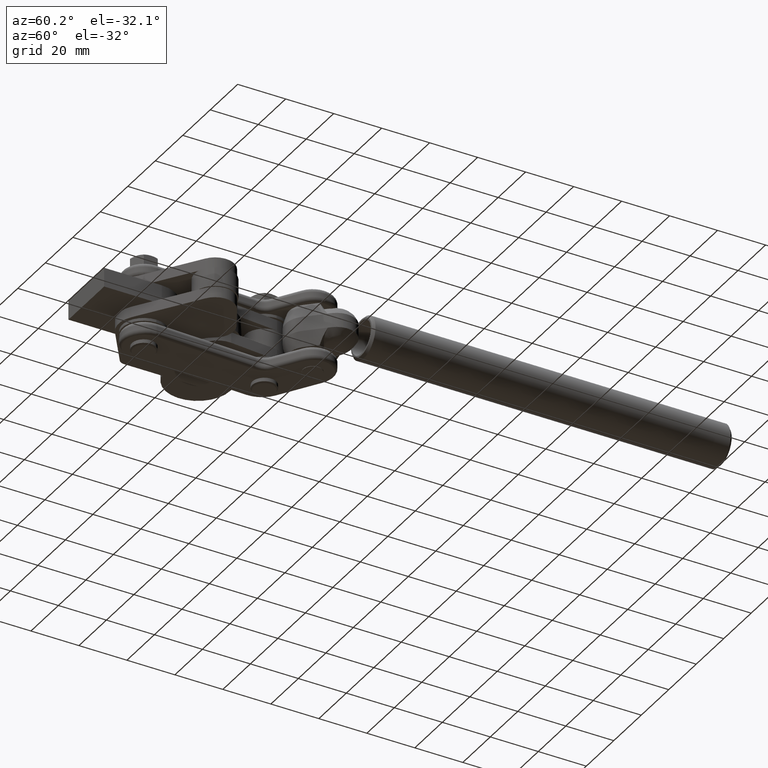
[diagram: clean part render]
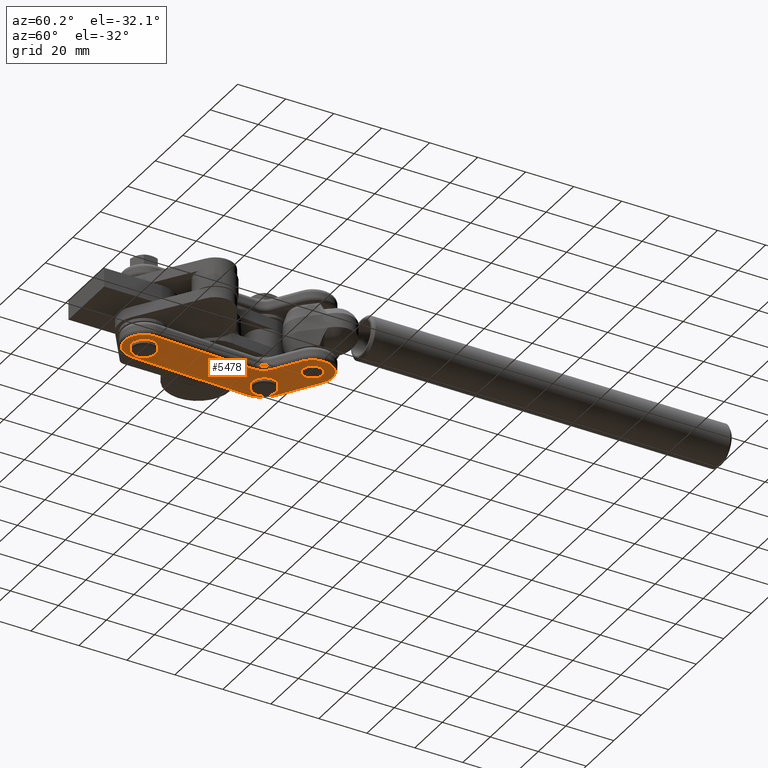
[diagram: same view with one face highlighted and labeled with its STEP entity id]
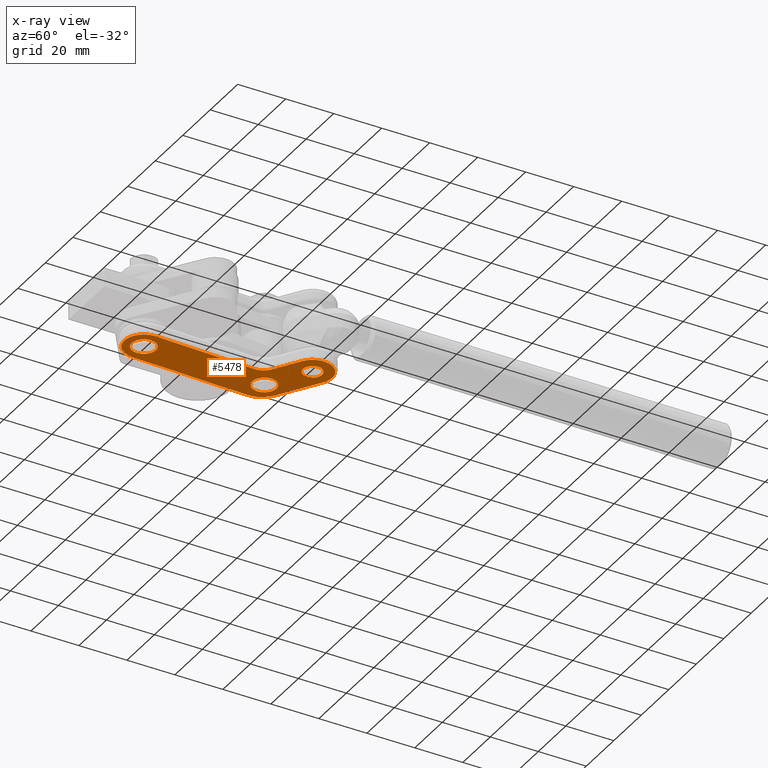
[diagram: x-ray of the same camera — body ghosted, the highlighted face saturated]
A machine part, auxiliary view. The second image highlights one B-rep face of the part: STEP entity #5478.
The next image is the same camera in x-ray: the body ghosted, the highlighted face saturated — about 0% of this face is hidden behind the body in this view.
In plain terms, the highlighted planar face has unit normal (0, -0, 1).
Its self-contained STEP definition (entity closure, byte-faithful):
#41 = DIRECTION ( 'NONE',  ( 0.02041893309478636000, -0.9997915118519814500, -1.179076545733166000E-016 ) ) ;
#205 = VERTEX_POINT ( 'NONE', #10947 ) ;
#322 = EDGE_CURVE ( 'NONE', #7560, #7708, #12642, .T. ) ;
#393 = CARTESIAN_POINT ( 'NONE',  ( 4.267419750903407400E-016, 24.00000000000000400, -15.10000000000000900 ) ) ;
#622 = AXIS2_PLACEMENT_3D ( 'NONE', #8979, #2618, #10031 ) ;
#659 = CARTESIAN_POINT ( 'NONE',  ( 15.37457460903995200, 85.51675792523471400, -15.09999999999999800 ) ) ;
#694 = CARTESIAN_POINT ( 'NONE',  ( -8.194119609790277500, 23.68951035371996000, -15.10000000000000300 ) ) ;
#785 = FACE_OUTER_BOUND ( 'NONE', #8835, .T. ) ;
#881 = CARTESIAN_POINT ( 'NONE',  ( 10.88814944763291200, 92.38057532308948800, -15.09999999999999600 ) ) ;
#914 = VERTEX_POINT ( 'NONE', #9258 ) ;
#1119 = EDGE_LOOP ( 'NONE', ( #2631, #5591 ) ) ;
#1169 = DIRECTION ( 'NONE',  ( 0.8370509021774107400, 0.5471250196837856800, -2.907818477255799900E-018 ) ) ;
#1259 = ORIENTED_EDGE ( 'NONE', *, *, #11682, .T. ) ;
#1305 = EDGE_CURVE ( 'NONE', #13028, #11928, #9318, .T. ) ;
#1323 = ORIENTED_EDGE ( 'NONE', *, *, #3184, .T. ) ;
#1417 = CARTESIAN_POINT ( 'NONE',  ( 8.194119609790650600, 24.31048964628004700, -15.10000000000000300 ) ) ;
#1484 = DIRECTION ( 'NONE',  ( 0.2583436741269925500, -0.9660530762015957500, 0.0000000000000000000 ) ) ;
#1540 = ORIENTED_EDGE ( 'NONE', *, *, #1305, .T. ) ;
#1625 = CIRCLE ( 'NONE', #11343, 10.70000000000014900 ) ;
#1729 = DIRECTION ( 'NONE',  ( 0.02041893309478991200, -0.9997915118519813400, -2.115516434118059400E-016 ) ) ;
#1737 = EDGE_CURVE ( 'NONE', #4436, #914, #12243, .T. ) ;
#1767 = CIRCLE ( 'NONE', #7724, 8.199999999999979700 ) ;
#1828 = ORIENTED_EDGE ( 'NONE', *, *, #4341, .T. ) ;
#1841 = DIRECTION ( 'NONE',  ( 0.03786459100976170800, -0.9992828792427414000, 9.872495213524562900E-019 ) ) ;
#1939 = EDGE_LOOP ( 'NONE', ( #13435, #4606 ) ) ;
#2286 = CARTESIAN_POINT ( 'NONE',  ( -1.037281801216083600, 74.78940880208064400, -15.10000000000000700 ) ) ;
#2350 = AXIS2_PLACEMENT_3D ( 'NONE', #8782, #2433, #9823 ) ;
#2433 = DIRECTION ( 'NONE',  ( 2.759769655850127200E-018, 1.092530546985554200E-018, 1.000000000000000000 ) ) ;
#2495 = CARTESIAN_POINT ( 'NONE',  ( -8.194119609790279300, 23.68951035371996000, -15.10000000000000300 ) ) ;
#2522 = DIRECTION ( 'NONE',  ( 0.6804252120048569500, -0.7328175290399004900, 0.0000000000000000000 ) ) ;
#2618 = DIRECTION ( 'NONE',  ( -5.188471184501662800E-018, 1.178262769095968900E-016, -1.000000000000000000 ) ) ;
#2631 = ORIENTED_EDGE ( 'NONE', *, *, #4298, .T. ) ;
#2920 = CARTESIAN_POINT ( 'NONE',  ( 1.862950070566014600E-013, 24.00000000000000400, -15.10000000000000300 ) ) ;
#3089 = EDGE_CURVE ( 'NONE', #9402, #11503, #13527, .T. ) ;
#3184 = EDGE_CURVE ( 'NONE', #11073, #13607, #9083, .T. ) ;
#3256 = VERTEX_POINT ( 'NONE', #881 ) ;
#3404 = VECTOR ( 'NONE', #1841, 1000.000000000000100 ) ;
#3463 = CARTESIAN_POINT ( 'NONE',  ( -5.205530951527545200, 81.86119689309180100, -15.09999999999999800 ) ) ;
#3519 = DIRECTION ( 'NONE',  ( -0.03786459100976167400, 0.9992828792427414000, -9.872495213524562900E-019 ) ) ;
#3644 = CIRCLE ( 'NONE', #10055, 6.300000000000143700 ) ;
#3729 = VECTOR ( 'NONE', #1169, 1000.000000000000200 ) ;
#3744 = AXIS2_PLACEMENT_3D ( 'NONE', #393, #7800, #1484 ) ;
#3881 = CARTESIAN_POINT ( 'NONE',  ( 12.89717436820860500, 66.57472272249512500, -15.10000000000000000 ) ) ;
#3887 = FACE_BOUND ( 'NONE', #1119, .T. ) ;
#3942 = CIRCLE ( 'NONE', #2350, 4.000000000000000900 ) ;
#3977 = DIRECTION ( 'NONE',  ( 0.02041893309490624300, -0.9997915118519790100, -2.115516434118062600E-016 ) ) ;
#3992 = EDGE_CURVE ( 'NONE', #6381, #205, #11900, .T. ) ;
#4072 = LINE ( 'NONE', #4268, #3729 ) ;
#4076 = ORIENTED_EDGE ( 'NONE', *, *, #9300, .T. ) ;
#4161 = PLANE ( 'NONE',  #11402 ) ;
#4268 = CARTESIAN_POINT ( 'NONE',  ( 10.88814944763291100, 92.38057532308948800, -15.09999999999999800 ) ) ;
#4298 = EDGE_CURVE ( 'NONE', #914, #4436, #3942, .T. ) ;
#4341 = EDGE_CURVE ( 'NONE', #11928, #13028, #6444, .T. ) ;
#4358 = DIRECTION ( 'NONE',  ( -5.188471184501662800E-018, 1.178262769095968900E-016, -1.000000000000000000 ) ) ;
#4436 = VERTEX_POINT ( 'NONE', #10068 ) ;
#4461 = ORIENTED_EDGE ( 'NONE', *, *, #6623, .T. ) ;
#4476 = CARTESIAN_POINT ( 'NONE',  ( -1.291718370634961800, 28.83026538100798300, -15.10000000000000900 ) ) ;
#4494 = CARTESIAN_POINT ( 'NONE',  ( 8.198290397186415400, 24.16743525137724900, -15.10000000000000300 ) ) ;
#4606 = ORIENTED_EDGE ( 'NONE', *, *, #12091, .T. ) ;
#4804 = CARTESIAN_POINT ( 'NONE',  ( 19.86099977044698400, 78.65294052737996800, -15.09999999999999800 ) ) ;
#4914 = EDGE_CURVE ( 'NONE', #10482, #3256, #4072, .T. ) ;
#4936 = DIRECTION ( 'NONE',  ( -0.02041893309478560700, 0.9997915118519814500, 0.0000000000000000000 ) ) ;
#5343 = AXIS2_PLACEMENT_3D ( 'NONE', #7045, #5380, #10573 ) ;
#5380 = DIRECTION ( 'NONE',  ( 0.0000000000000000000, 0.0000000000000000000, 1.000000000000000000 ) ) ;
#5478 = ADVANCED_FACE ( 'NONE', ( #3887, #9230, #785, #9540 ), #4161, .F. ) ;
#5591 = ORIENTED_EDGE ( 'NONE', *, *, #1737, .T. ) ;
#5599 = CIRCLE ( 'NONE', #622, 8.199999999999979700 ) ;
#5756 = AXIS2_PLACEMENT_3D ( 'NONE', #659, #8075, #1729 ) ;
#5837 = DIRECTION ( 'NONE',  ( -5.188471184501662800E-018, 1.178262769095968900E-016, -1.000000000000000000 ) ) ;
#5956 = CARTESIAN_POINT ( 'NONE',  ( -1.037281801216083600, 74.78940880208064400, -15.10000000000000700 ) ) ;
#6023 = CARTESIAN_POINT ( 'NONE',  ( 8.194119609790650600, 24.31048964628004700, -15.10000000000000300 ) ) ;
#6097 = CARTESIAN_POINT ( 'NONE',  ( 2.364844258808200400, 71.12532115688114200, -15.10000000000000700 ) ) ;
#6183 = ORIENTED_EDGE ( 'NONE', *, *, #4914, .T. ) ;
#6348 = DIRECTION ( 'NONE',  ( 5.188471184501661300E-018, -1.178262769095968100E-016, 1.000000000000000000 ) ) ;
#6381 = VERTEX_POINT ( 'NONE', #694 ) ;
#6421 = AXIS2_PLACEMENT_3D ( 'NONE', #2286, #9113, #2522 ) ;
#6444 = CIRCLE ( 'NONE', #3744, 5.000000000000000000 ) ;
#6533 = ORIENTED_EDGE ( 'NONE', *, *, #11184, .T. ) ;
#6623 = EDGE_CURVE ( 'NONE', #10597, #9402, #12109, .T. ) ;
#6955 = DIRECTION ( 'NONE',  ( -0.8370509021774102900, -0.5471250196837861300, 2.907818477255799100E-018 ) ) ;
#6990 = EDGE_LOOP ( 'NONE', ( #1828, #1540 ) ) ;
#7016 = DIRECTION ( 'NONE',  ( 0.6804252120048569500, -0.7328175290399004900, 0.0000000000000000000 ) ) ;
#7045 = CARTESIAN_POINT ( 'NONE',  ( 4.267419750903407400E-016, 24.00000000000000400, -15.10000000000000900 ) ) ;
#7300 = CARTESIAN_POINT ( 'NONE',  ( 1.291718370634963100, 19.16973461899202400, -15.10000000000000900 ) ) ;
#7366 = CIRCLE ( 'NONE', #5756, 8.199999999999992200 ) ;
#7385 = ORIENTED_EDGE ( 'NONE', *, *, #3992, .T. ) ;
#7473 = DIRECTION ( 'NONE',  ( 0.9997915118519814500, 0.02041893309478667500, 0.0000000000000000000 ) ) ;
#7560 = VERTEX_POINT ( 'NONE', #6097 ) ;
#7708 = VERTEX_POINT ( 'NONE', #12846 ) ;
#7724 = AXIS2_PLACEMENT_3D ( 'NONE', #2920, #10338, #3977 ) ;
#7755 = VERTEX_POINT ( 'NONE', #4494 ) ;
#7800 = DIRECTION ( 'NONE',  ( 0.0000000000000000000, 0.0000000000000000000, 1.000000000000000000 ) ) ;
#7913 = VECTOR ( 'NONE', #6955, 1000.000000000000200 ) ;
#8037 = CARTESIAN_POINT ( 'NONE',  ( 6.601692228979044500, 66.33617579913344300, -15.10000000000000300 ) ) ;
#8075 = DIRECTION ( 'NONE',  ( -5.188471184501662800E-018, 1.178262769095968900E-016, -1.000000000000000000 ) ) ;
#8211 = ORIENTED_EDGE ( 'NONE', *, *, #13201, .T. ) ;
#8782 = CARTESIAN_POINT ( 'NONE',  ( 15.37457460903995200, 85.51675792523471400, -15.10000000000000300 ) ) ;
#8804 = CARTESIAN_POINT ( 'NONE',  ( 9.450286744200399300, 71.84814340621265700, -15.10000000000000000 ) ) ;
#8835 = EDGE_LOOP ( 'NONE', ( #6183, #1259, #4461, #13194, #8211, #1323, #6533, #4076, #7385, #12735 ) ) ;
#8979 = CARTESIAN_POINT ( 'NONE',  ( 1.862950070566014600E-013, 24.00000000000000400, -15.10000000000000300 ) ) ;
#9083 = LINE ( 'NONE', #6023, #3404 ) ;
#9113 = DIRECTION ( 'NONE',  ( 1.224606353822381000E-016, 1.908784384454165900E-032, 1.000000000000000000 ) ) ;
#9117 = AXIS2_PLACEMENT_3D ( 'NONE', #11410, #13415, #7473 ) ;
#9118 = VECTOR ( 'NONE', #3519, 1000.000000000000100 ) ;
#9230 = FACE_BOUND ( 'NONE', #1939, .T. ) ;
#9258 = CARTESIAN_POINT ( 'NONE',  ( 19.37374065644787900, 85.59843365761386700, -15.10000000000000300 ) ) ;
#9300 = EDGE_CURVE ( 'NONE', #7755, #6381, #5599, .T. ) ;
#9318 = CIRCLE ( 'NONE', #5343, 5.000000000000000000 ) ;
#9402 = VERTEX_POINT ( 'NONE', #9912 ) ;
#9540 = FACE_BOUND ( 'NONE', #6990, .T. ) ;
#9823 = DIRECTION ( 'NONE',  ( 0.9997915118519814500, 0.02041893309478667500, 0.0000000000000000000 ) ) ;
#9912 = CARTESIAN_POINT ( 'NONE',  ( 19.86099977044698800, 78.65294052737996800, -15.09999999999999800 ) ) ;
#10031 = DIRECTION ( 'NONE',  ( 0.02041893309478459000, -0.9997915118519815600, -2.115516434118062600E-016 ) ) ;
#10055 = AXIS2_PLACEMENT_3D ( 'NONE', #3881, #11293, #4936 ) ;
#10068 = CARTESIAN_POINT ( 'NONE',  ( 11.37540856163202600, 85.43508219285557500, -15.10000000000000300 ) ) ;
#10338 = DIRECTION ( 'NONE',  ( -5.188471184501662800E-018, 1.178262769095968900E-016, -1.000000000000000000 ) ) ;
#10482 = VERTEX_POINT ( 'NONE', #3463 ) ;
#10573 = DIRECTION ( 'NONE',  ( 0.2583436741269925500, -0.9660530762015957500, 0.0000000000000000000 ) ) ;
#10588 = EDGE_CURVE ( 'NONE', #205, #10482, #1625, .T. ) ;
#10597 = VERTEX_POINT ( 'NONE', #11030 ) ;
#10728 = CARTESIAN_POINT ( 'NONE',  ( 15.37457460903995200, 85.51675792523471400, -15.09999999999999800 ) ) ;
#10925 = AXIS2_PLACEMENT_3D ( 'NONE', #5956, #13362, #7016 ) ;
#10947 = CARTESIAN_POINT ( 'NONE',  ( -10.04362004880832200, 72.49960111598902300, -15.10000000000000300 ) ) ;
#11030 = CARTESIAN_POINT ( 'NONE',  ( 23.57286500622618800, 85.68419317661197000, -15.09999999999999800 ) ) ;
#11073 = VERTEX_POINT ( 'NONE', #8037 ) ;
#11184 = EDGE_CURVE ( 'NONE', #13607, #7755, #1767, .T. ) ;
#11293 = DIRECTION ( 'NONE',  ( 5.188471184501662800E-018, -1.178262769095968900E-016, 1.000000000000000000 ) ) ;
#11343 = AXIS2_PLACEMENT_3D ( 'NONE', #12177, #5837, #13247 ) ;
#11402 = AXIS2_PLACEMENT_3D ( 'NONE', #12688, #6348, #41 ) ;
#11410 = CARTESIAN_POINT ( 'NONE',  ( 15.37457460903995200, 85.51675792523471400, -15.10000000000000300 ) ) ;
#11503 = VERTEX_POINT ( 'NONE', #8804 ) ;
#11682 = EDGE_CURVE ( 'NONE', #3256, #10597, #7366, .T. ) ;
#11773 = DIRECTION ( 'NONE',  ( 0.02041893309478631400, -0.9997915118519813400, -2.115516434118059400E-016 ) ) ;
#11900 = LINE ( 'NONE', #2495, #9118 ) ;
#11928 = VERTEX_POINT ( 'NONE', #7300 ) ;
#12091 = EDGE_CURVE ( 'NONE', #7708, #7560, #12661, .T. ) ;
#12109 = CIRCLE ( 'NONE', #13619, 8.199999999999992200 ) ;
#12177 = CARTESIAN_POINT ( 'NONE',  ( 0.6487067590893171900, 72.90475223979368000, -15.10000000000000000 ) ) ;
#12243 = CIRCLE ( 'NONE', #9117, 4.000000000000000900 ) ;
#12642 = CIRCLE ( 'NONE', #6421, 4.999999999999998200 ) ;
#12661 = CIRCLE ( 'NONE', #10925, 4.999999999999998200 ) ;
#12688 = CARTESIAN_POINT ( 'NONE',  ( -11.32894340157273700, 96.17496720923340100, -15.09999999999999600 ) ) ;
#12735 = ORIENTED_EDGE ( 'NONE', *, *, #10588, .T. ) ;
#12846 = CARTESIAN_POINT ( 'NONE',  ( -4.439407861240368000, 78.45349644728014500, -15.10000000000000700 ) ) ;
#13028 = VERTEX_POINT ( 'NONE', #4476 ) ;
#13194 = ORIENTED_EDGE ( 'NONE', *, *, #3089, .T. ) ;
#13201 = EDGE_CURVE ( 'NONE', #11503, #11073, #3644, .T. ) ;
#13247 = DIRECTION ( 'NONE',  ( 0.02041893309478547500, -0.9997915118519813400, -1.621236893436245700E-016 ) ) ;
#13362 = DIRECTION ( 'NONE',  ( 1.224606353822381000E-016, 1.908784384454165900E-032, 1.000000000000000000 ) ) ;
#13415 = DIRECTION ( 'NONE',  ( 2.759769655850127200E-018, 1.092530546985554200E-018, 1.000000000000000000 ) ) ;
#13435 = ORIENTED_EDGE ( 'NONE', *, *, #322, .T. ) ;
#13527 = LINE ( 'NONE', #4804, #7913 ) ;
#13607 = VERTEX_POINT ( 'NONE', #1417 ) ;
#13619 = AXIS2_PLACEMENT_3D ( 'NONE', #10728, #4358, #11773 ) ;